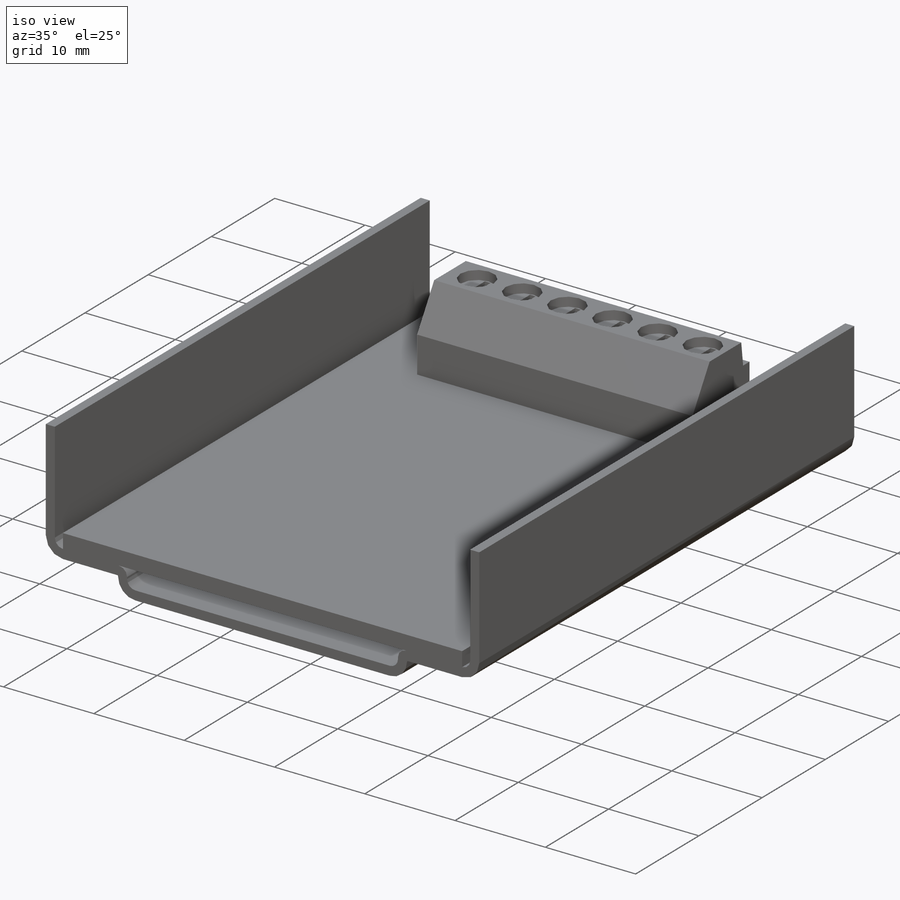
[diagram: iso view]
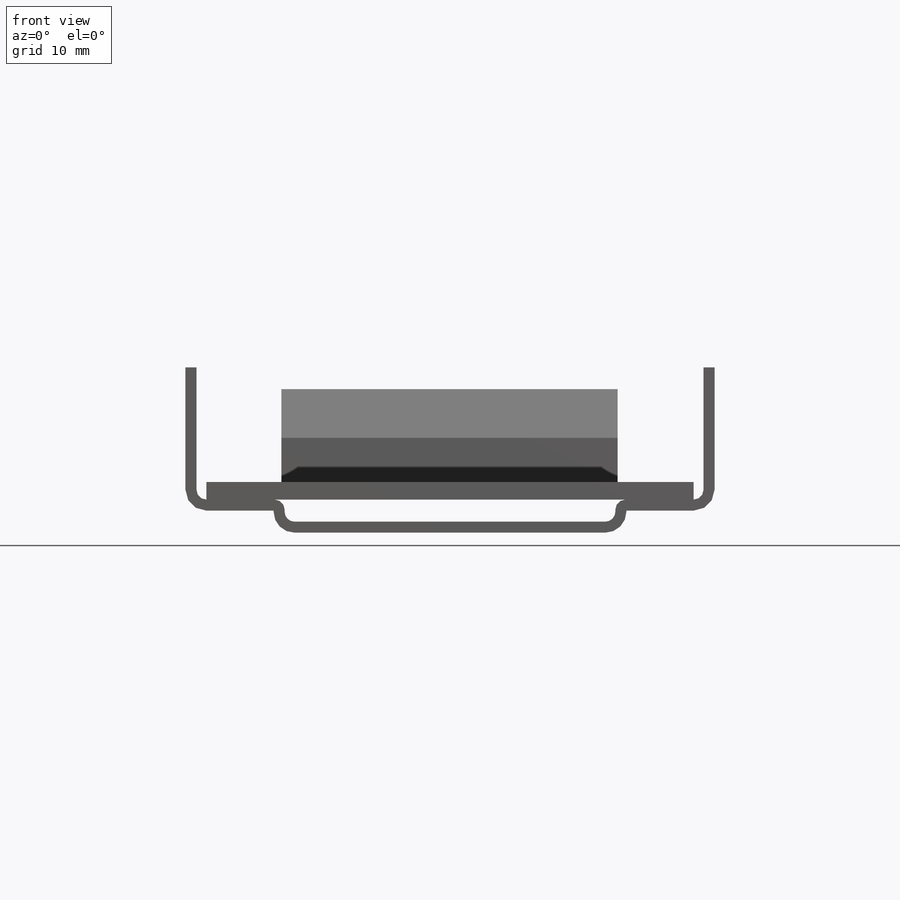
[diagram: front view]
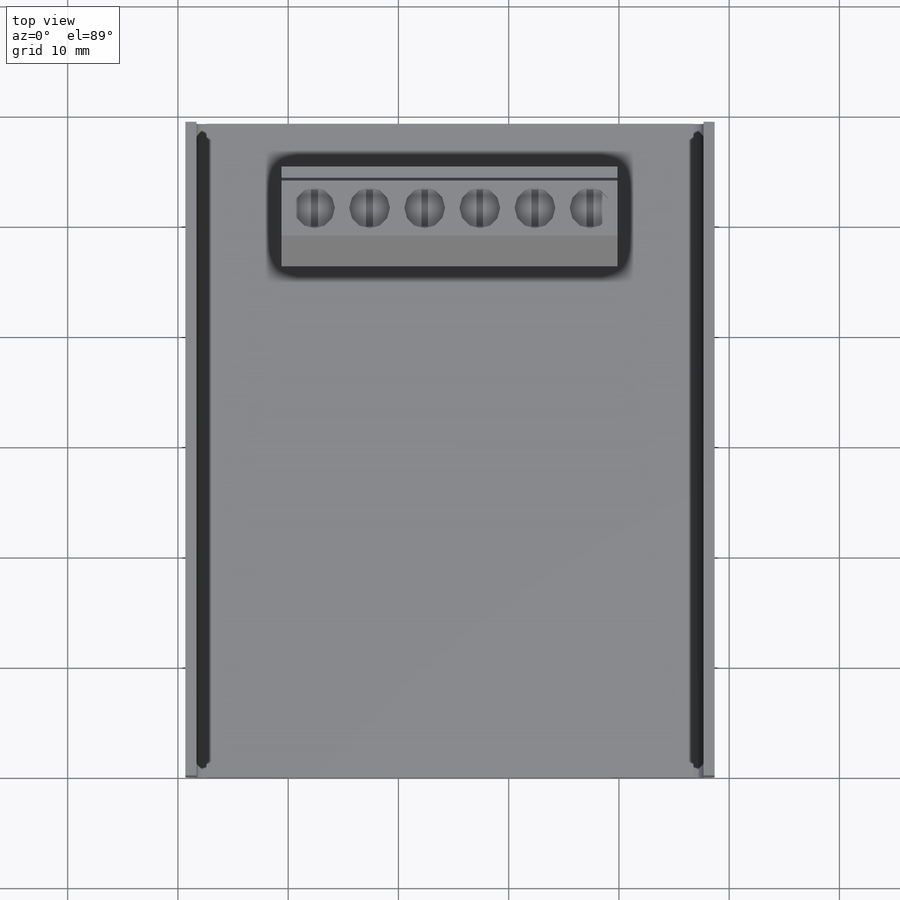
[diagram: top view]
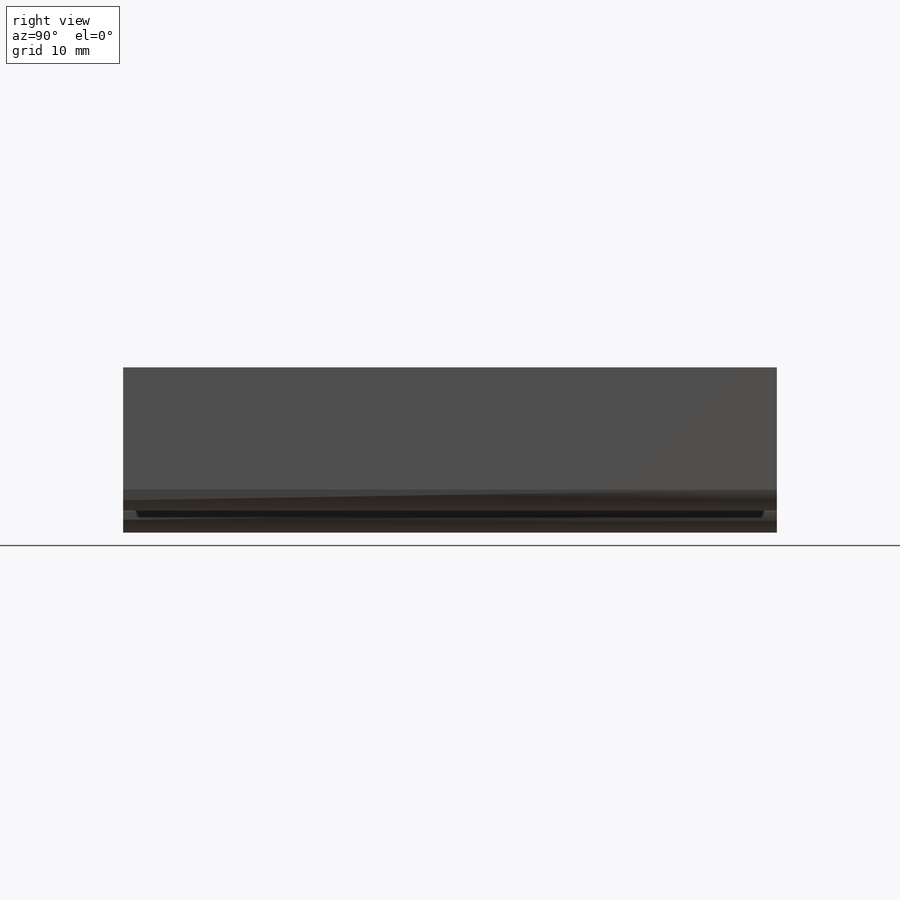
[diagram: right view]
SOLIDWORKS PART (.sldprt)
format: sldprt  version: not decoded by parser v0  size: 450,048 bytes
history: native  units: mm
features: sketch x6, extrude x3, cut_extrude x2, material x1, plane x1, pattern_linear x1 (+11 scaffold rows collapsed)
feature tree (25):
  scaffold x11  (default folders/planes/origin — collapsed)
  material  "Material <not specified>"
  sketch  "Sketch1"  dims[c1.D8=0.9mm c1.D9=0.9mm c1.D10=0.9mm c1.D1=12.0mm c1.D2=8.0mm c1.D3=12.0mm c1.D4=8.0mm c1.D5=46.0mm c1.D6=2.0mm c1.D7=2.0mm c2.D1=59.3mm c2.D5=1.0mm c2.D6=1.0mm c2.D7=5.0mm]
  sketch  "Sketch2"
  extrude  "Extrude1"  Depth=1.6mm
  plane  "Plane1"  Offset=7.8mm
  sketch  "Sketch3"  dims[D1=9.0mm D2=6.0mm D3=1.0mm D4=4.0mm D5=5.0mm D6=4.0mm]
  extrude  "Extrude2"  Depth=30.5mm
  sketch  "Sketch4"  dims[D1=3.7mm D2=3.0mm]
  cut_extrude  "Extrude3"  Depth=1.5mm
  sketch  "Sketch6"
  extrude  "Extrude4"  Depth=0.5mm
  sketch  "Sketch8"
  cut_extrude  "Extrude5"  Depth=0.4mm
  pattern_linear  "LPattern1"  Count1=6 Count2=1 Spacing1=5mm Spacing2=1mm
decode coverage: 9 of 12 modeling features carry decoded parameters
note: suppression state not decoded; provenance and decode notes live in map.json
